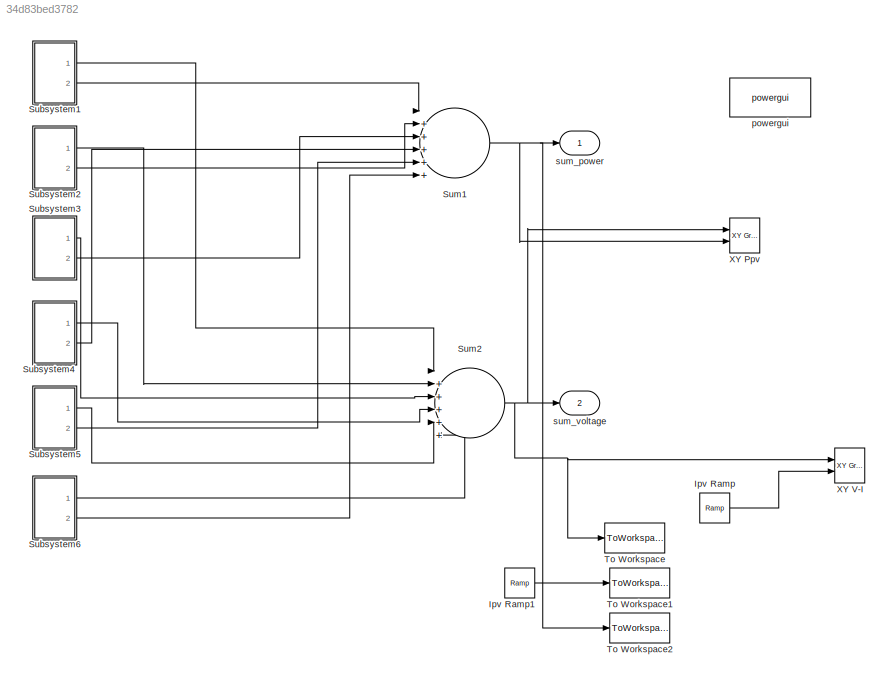
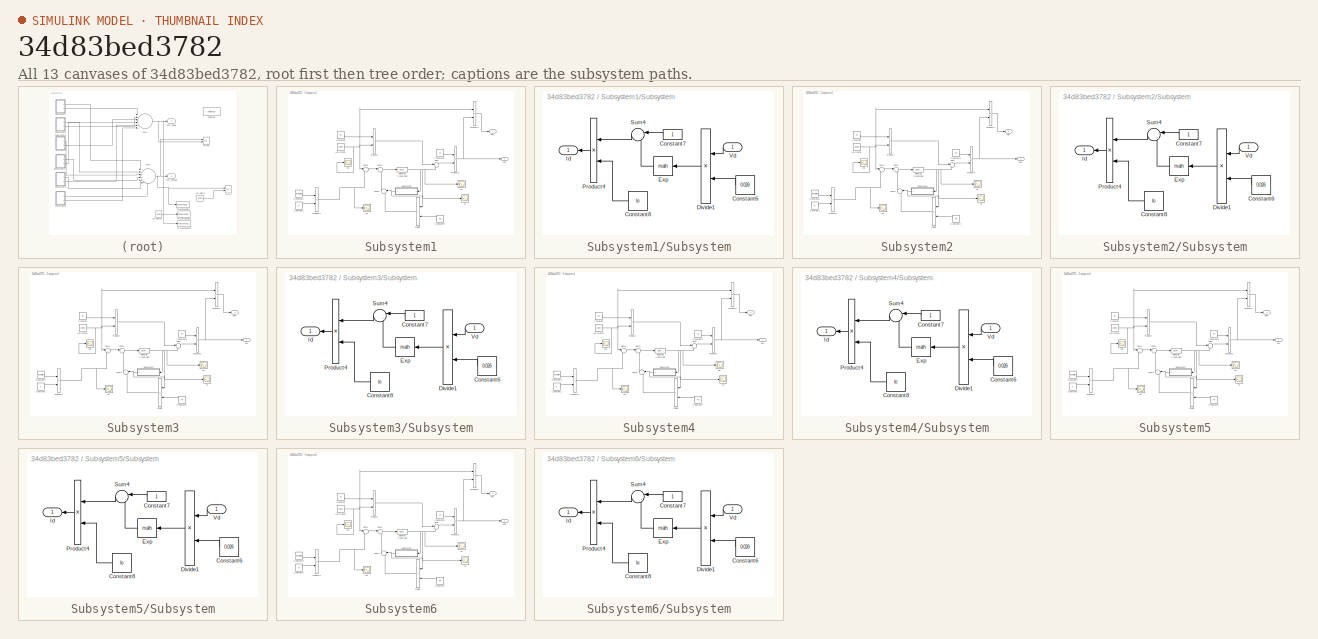
[diagram: thumbnail index - all 13 canvases of the model, root first then tree order]
MODEL slx_34d83bed3782
KIND model
CONFIG AbsTol = auto
CONFIG EnableMultiTasking = off
CONFIG FixedStep = auto
CONFIG MaxStep = auto
CONFIG MinStep = auto
CONFIG RelTol = 1e-3
CONFIG SampleTimeConstraint = Unconstrained
CONFIG Solver = VariableStepDiscrete
CONFIG SolverName = VariableStepDiscrete
CONFIG StartTime = 0.0
CONFIG StopTime = 1
BLOCK [Reference] Ipv Ramp  REF=simulink/Sources/Ramp
  Ports = [0, 1]
  SourceBlock = simulink/Sources/Ramp
  SourceProductBaseCode = SL
  SourceProductName = Simulink
  SourceType = Ramp
BLOCK [Reference] Ipv Ramp1  REF=simulink/Sources/Ramp
  Ports = [0, 1]
  SourceBlock = simulink/Sources/Ramp
  SourceProductBaseCode = SL
  SourceProductName = Simulink
  SourceType = Ramp
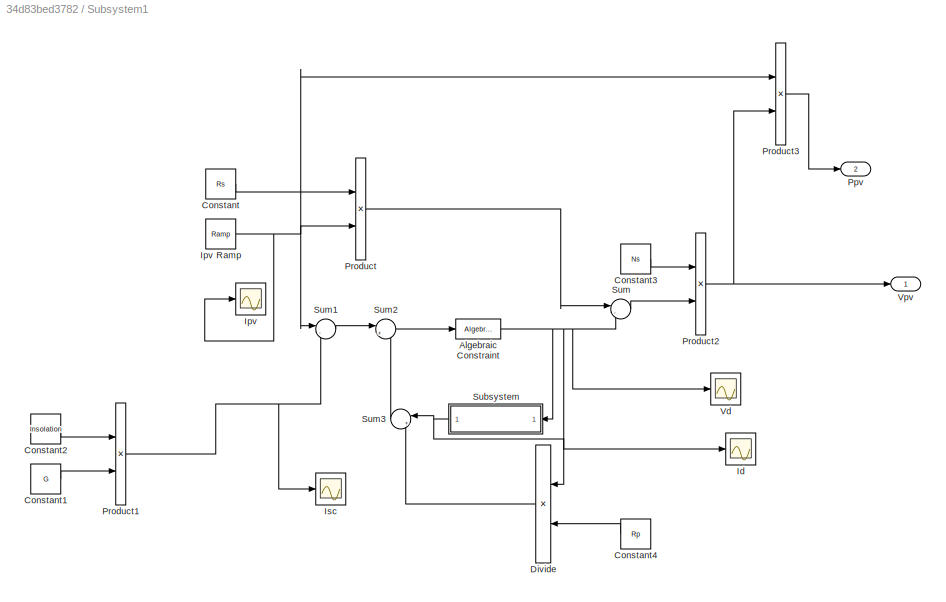
BLOCK [SubSystem] Subsystem1
  Ports = [0, 2]
  RequestExecContextInheritance = off
BLOCK [AlgebraicConstraint] Subsystem1/Algebraic Constraint
BLOCK [Constant] Subsystem1/Constant
  Value = Rs
BLOCK [Constant] Subsystem1/Constant1
  Value = G
BLOCK [Constant] Subsystem1/Constant2
  Value = Insolation
BLOCK [Constant] Subsystem1/Constant3
  Value = Ns
BLOCK [Constant] Subsystem1/Constant4
  Value = Rp
BLOCK [Product] Subsystem1/Divide
  InputSameDT = off
  Inputs = */
  OutDataTypeStr = Inherit: Inherit via internal rule
  Ports = [2, 1]
  RndMeth = Floor
  SaturateOnIntegerOverflow = off
BLOCK [Scope] Subsystem1/Id
  Floating = off
  NumInputPorts = 1
  Ports = [1]
  ScopeSpecificationString = Simulink.scopes.TimeScopeBlockCfg('CurrentConfiguration', extmgr.ConfigurationSet(extmgr.Configuration('Core','General UI',true),extmgr.Configuration('Core','Source UI',true),extmgr.Configuration('Sources','WiredSimulink',true,'DataLoggingVariableName','ScopeData2'),extmgr.Configuration('Visuals','Time Domain',true,'SerializedDisplays',{struct('MinYLimReal','-0.11149','MaxYLimReal','1.00337','YLab...<+1423ch>  <repeated x6 — deduplicated; at blocks: Id>
BLOCK [Scope] Subsystem1/Ipv 
  Floating = off
  NumInputPorts = 1
  Ports = [1]
  ScopeSpecificationString = Simulink.scopes.TimeScopeBlockCfg('CurrentConfiguration', extmgr.ConfigurationSet(extmgr.Configuration('Core','General UI',true),extmgr.Configuration('Core','Source UI',true),extmgr.Configuration('Sources','WiredSimulink',true,'DataLoggingVariableName','ScopeData3'),extmgr.Configuration('Visuals','Time Domain',true,'SerializedDisplays',{struct('MinYLimReal','-0.75','MaxYLimReal','6.75','YLabelReal...<+1404ch>  <repeated x6 — deduplicated; at blocks: Ipv>
BLOCK [Reference] Subsystem1/Ipv Ramp  REF=simulink/Sources/Ramp
  Ports = [0, 1]
  SourceBlock = simulink/Sources/Ramp
  SourceProductBaseCode = SL
  SourceProductName = Simulink
  SourceType = Ramp
BLOCK [Scope] Subsystem1/Isc
  Floating = off
  NumInputPorts = 1
  Ports = [1]
  ScopeSpecificationString = Simulink.scopes.TimeScopeBlockCfg('CurrentConfiguration', extmgr.ConfigurationSet(extmgr.Configuration('Core','General UI',true),extmgr.Configuration('Core','Source UI',true),extmgr.Configuration('Sources','WiredSimulink',true),extmgr.Configuration('Visuals','Time Domain',true,'SerializedDisplays',{struct('MinYLimReal','0.1','MaxYLimReal','2.1','YLabelReal','','MinYLimMag','0.1','MaxYLimMag','2.1'...<+1349ch>  <repeated x6 — deduplicated; at blocks: Isc>
BLOCK [Outport] Subsystem1/Ppv
  IconDisplay = Port number
  Port = 2
BLOCK [Product] Subsystem1/Product
  InputSameDT = off
  OutDataTypeStr = Inherit: Inherit via internal rule
  Ports = [2, 1]
  RndMeth = Floor
  SaturateOnIntegerOverflow = off
BLOCK [Product] Subsystem1/Product1
  InputSameDT = off
  OutDataTypeStr = Inherit: Inherit via internal rule
  Ports = [2, 1]
  RndMeth = Floor
  SaturateOnIntegerOverflow = off
BLOCK [Product] Subsystem1/Product2
  InputSameDT = off
  OutDataTypeStr = Inherit: Inherit via internal rule
  Ports = [2, 1]
  RndMeth = Floor
  SaturateOnIntegerOverflow = off
BLOCK [Product] Subsystem1/Product3
  InputSameDT = off
  OutDataTypeStr = Inherit: Inherit via internal rule
  Ports = [2, 1]
  RndMeth = Floor
  SaturateOnIntegerOverflow = off
BLOCK [SubSystem] Subsystem1/Subsystem
  Ports = [1, 1]
  RequestExecContextInheritance = off
BLOCK [Constant] Subsystem1/Subsystem/Constant6
  Value = 0.026
BLOCK [Constant] Subsystem1/Subsystem/Constant7
BLOCK [Constant] Subsystem1/Subsystem/Constant8
  Value = Io
BLOCK [Product] Subsystem1/Subsystem/Divide1
  InputSameDT = off
  Inputs = */
  OutDataTypeStr = Inherit: Inherit via internal rule
  Ports = [2, 1]
  RndMeth = Floor
  SaturateOnIntegerOverflow = off
BLOCK [Math] Subsystem1/Subsystem/Exp
  Ports = [1, 1]
BLOCK [Outport] Subsystem1/Subsystem/Id
  IconDisplay = Port number
BLOCK [Product] Subsystem1/Subsystem/Product4
  InputSameDT = off
  OutDataTypeStr = Inherit: Inherit via internal rule
  Ports = [2, 1]
  RndMeth = Floor
  SaturateOnIntegerOverflow = off
BLOCK [Sum] Subsystem1/Subsystem/Sum4
  IconShape = round
  InputSameDT = off
  Inputs = |-+
  OutDataTypeStr = Inherit: Inherit via internal rule
  Ports = [2, 1]
  SaturateOnIntegerOverflow = off
BLOCK [Inport] Subsystem1/Subsystem/Vd
  IconDisplay = Port number
BLOCK [Sum] Subsystem1/Sum
  IconShape = round
  InputSameDT = off
  Inputs = |-+
  OutDataTypeStr = Inherit: Inherit via internal rule
  Ports = [2, 1]
  SaturateOnIntegerOverflow = off
BLOCK [Sum] Subsystem1/Sum1
  IconShape = round
  InputSameDT = off
  Inputs = |-+
  OutDataTypeStr = Inherit: Inherit via internal rule
  Ports = [2, 1]
  SaturateOnIntegerOverflow = off
BLOCK [Sum] Subsystem1/Sum2
  IconShape = round
  InputSameDT = off
  Inputs = |+-
  OutDataTypeStr = Inherit: Inherit via internal rule
  Ports = [2, 1]
  SaturateOnIntegerOverflow = off
BLOCK [Sum] Subsystem1/Sum3
  IconShape = round
  InputSameDT = off
  Inputs = |++
  OutDataTypeStr = Inherit: Inherit via internal rule
  Ports = [2, 1]
  SaturateOnIntegerOverflow = off
BLOCK [Scope] Subsystem1/Vd
  Floating = off
  NumInputPorts = 1
  Ports = [1]
  ScopeSpecificationString = Simulink.scopes.TimeScopeBlockCfg('CurrentConfiguration', extmgr.ConfigurationSet(extmgr.Configuration('Core','General UI',true),extmgr.Configuration('Core','Source UI',true),extmgr.Configuration('Sources','WiredSimulink',true,'DataLoggingVariableName','ScopeData1'),extmgr.Configuration('Visuals','Time Domain',true,'SerializedDisplays',{struct('MinYLimReal','-15.18772','MaxYLimReal','2.32164','YLa...<+1438ch>  <repeated x6 — deduplicated; at blocks: Vd>
BLOCK [Outport] Subsystem1/Vpv
  IconDisplay = Port number
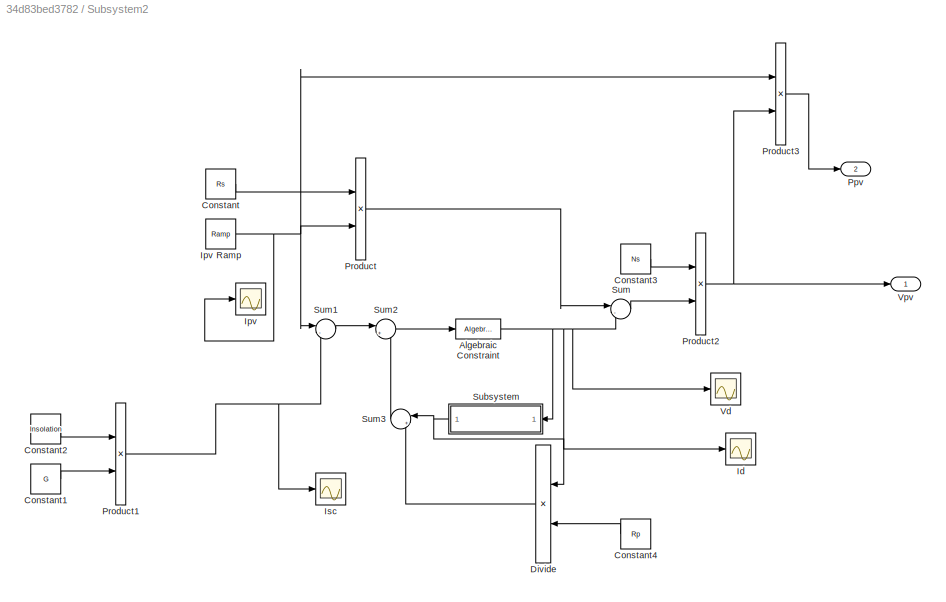
BLOCK [SubSystem] Subsystem2
  Ports = [0, 2]
  RequestExecContextInheritance = off
BLOCK [AlgebraicConstraint] Subsystem2/Algebraic Constraint
BLOCK [Constant] Subsystem2/Constant
  Value = Rs
BLOCK [Constant] Subsystem2/Constant1
  Value = G
BLOCK [Constant] Subsystem2/Constant2
  Value = Insolation
BLOCK [Constant] Subsystem2/Constant3
  Value = Ns
BLOCK [Constant] Subsystem2/Constant4
  Value = Rp
BLOCK [Product] Subsystem2/Divide
  InputSameDT = off
  Inputs = */
  OutDataTypeStr = Inherit: Inherit via internal rule
  Ports = [2, 1]
  RndMeth = Floor
  SaturateOnIntegerOverflow = off
BLOCK [Scope] Subsystem2/Id
  Floating = off
  NumInputPorts = 1
  Ports = [1]
BLOCK [Scope] Subsystem2/Ipv 
  Floating = off
  NumInputPorts = 1
  Ports = [1]
BLOCK [Reference] Subsystem2/Ipv Ramp  REF=simulink/Sources/Ramp
  Ports = [0, 1]
  SourceBlock = simulink/Sources/Ramp
  SourceProductBaseCode = SL
  SourceProductName = Simulink
  SourceType = Ramp
BLOCK [Scope] Subsystem2/Isc
  Floating = off
  NumInputPorts = 1
  Ports = [1]
BLOCK [Outport] Subsystem2/Ppv
  IconDisplay = Port number
  Port = 2
BLOCK [Product] Subsystem2/Product
  InputSameDT = off
  OutDataTypeStr = Inherit: Inherit via internal rule
  Ports = [2, 1]
  RndMeth = Floor
  SaturateOnIntegerOverflow = off
BLOCK [Product] Subsystem2/Product1
  InputSameDT = off
  OutDataTypeStr = Inherit: Inherit via internal rule
  Ports = [2, 1]
  RndMeth = Floor
  SaturateOnIntegerOverflow = off
BLOCK [Product] Subsystem2/Product2
  InputSameDT = off
  OutDataTypeStr = Inherit: Inherit via internal rule
  Ports = [2, 1]
  RndMeth = Floor
  SaturateOnIntegerOverflow = off
BLOCK [Product] Subsystem2/Product3
  InputSameDT = off
  OutDataTypeStr = Inherit: Inherit via internal rule
  Ports = [2, 1]
  RndMeth = Floor
  SaturateOnIntegerOverflow = off
BLOCK [SubSystem] Subsystem2/Subsystem
  Ports = [1, 1]
  RequestExecContextInheritance = off
BLOCK [Constant] Subsystem2/Subsystem/Constant6
  Value = 0.026
BLOCK [Constant] Subsystem2/Subsystem/Constant7
BLOCK [Constant] Subsystem2/Subsystem/Constant8
  Value = Io
BLOCK [Product] Subsystem2/Subsystem/Divide1
  InputSameDT = off
  Inputs = */
  OutDataTypeStr = Inherit: Inherit via internal rule
  Ports = [2, 1]
  RndMeth = Floor
  SaturateOnIntegerOverflow = off
BLOCK [Math] Subsystem2/Subsystem/Exp
  Ports = [1, 1]
BLOCK [Outport] Subsystem2/Subsystem/Id
  IconDisplay = Port number
BLOCK [Product] Subsystem2/Subsystem/Product4
  InputSameDT = off
  OutDataTypeStr = Inherit: Inherit via internal rule
  Ports = [2, 1]
  RndMeth = Floor
  SaturateOnIntegerOverflow = off
BLOCK [Sum] Subsystem2/Subsystem/Sum4
  IconShape = round
  InputSameDT = off
  Inputs = |-+
  OutDataTypeStr = Inherit: Inherit via internal rule
  Ports = [2, 1]
  SaturateOnIntegerOverflow = off
BLOCK [Inport] Subsystem2/Subsystem/Vd
  IconDisplay = Port number
BLOCK [Sum] Subsystem2/Sum
  IconShape = round
  InputSameDT = off
  Inputs = |-+
  OutDataTypeStr = Inherit: Inherit via internal rule
  Ports = [2, 1]
  SaturateOnIntegerOverflow = off
BLOCK [Sum] Subsystem2/Sum1
  IconShape = round
  InputSameDT = off
  Inputs = |-+
  OutDataTypeStr = Inherit: Inherit via internal rule
  Ports = [2, 1]
  SaturateOnIntegerOverflow = off
BLOCK [Sum] Subsystem2/Sum2
  IconShape = round
  InputSameDT = off
  Inputs = |+-
  OutDataTypeStr = Inherit: Inherit via internal rule
  Ports = [2, 1]
  SaturateOnIntegerOverflow = off
BLOCK [Sum] Subsystem2/Sum3
  IconShape = round
  InputSameDT = off
  Inputs = |++
  OutDataTypeStr = Inherit: Inherit via internal rule
  Ports = [2, 1]
  SaturateOnIntegerOverflow = off
BLOCK [Scope] Subsystem2/Vd
  Floating = off
  NumInputPorts = 1
  Ports = [1]
BLOCK [Outport] Subsystem2/Vpv
  IconDisplay = Port number
BLOCK [SubSystem] Subsystem3
  Ports = [0, 2]
  RequestExecContextInheritance = off
BLOCK [AlgebraicConstraint] Subsystem3/Algebraic Constraint
BLOCK [Constant] Subsystem3/Constant
  Value = Rs
BLOCK [Constant] Subsystem3/Constant1
  Value = G
BLOCK [Constant] Subsystem3/Constant2
  Value = Insolation
BLOCK [Constant] Subsystem3/Constant3
  Value = Ns
BLOCK [Constant] Subsystem3/Constant4
  Value = Rp
BLOCK [Product] Subsystem3/Divide
  InputSameDT = off
  Inputs = */
  OutDataTypeStr = Inherit: Inherit via internal rule
  Ports = [2, 1]
  RndMeth = Floor
  SaturateOnIntegerOverflow = off
BLOCK [Scope] Subsystem3/Id
  Floating = off
  NumInputPorts = 1
  Ports = [1]
BLOCK [Scope] Subsystem3/Ipv 
  Floating = off
  NumInputPorts = 1
  Ports = [1]
BLOCK [Reference] Subsystem3/Ipv Ramp  REF=simulink/Sources/Ramp
  Ports = [0, 1]
  SourceBlock = simulink/Sources/Ramp
  SourceProductBaseCode = SL
  SourceProductName = Simulink
  SourceType = Ramp
BLOCK [Scope] Subsystem3/Isc
  Floating = off
  NumInputPorts = 1
  Ports = [1]
BLOCK [Outport] Subsystem3/Ppv
  IconDisplay = Port number
  Port = 2
BLOCK [Product] Subsystem3/Product
  InputSameDT = off
  OutDataTypeStr = Inherit: Inherit via internal rule
  Ports = [2, 1]
  RndMeth = Floor
  SaturateOnIntegerOverflow = off
BLOCK [Product] Subsystem3/Product1
  InputSameDT = off
  OutDataTypeStr = Inherit: Inherit via internal rule
  Ports = [2, 1]
  RndMeth = Floor
  SaturateOnIntegerOverflow = off
BLOCK [Product] Subsystem3/Product2
  InputSameDT = off
  OutDataTypeStr = Inherit: Inherit via internal rule
  Ports = [2, 1]
  RndMeth = Floor
  SaturateOnIntegerOverflow = off
BLOCK [Product] Subsystem3/Product3
  InputSameDT = off
  OutDataTypeStr = Inherit: Inherit via internal rule
  Ports = [2, 1]
  RndMeth = Floor
  SaturateOnIntegerOverflow = off
BLOCK [SubSystem] Subsystem3/Subsystem
  Ports = [1, 1]
  RequestExecContextInheritance = off
BLOCK [Constant] Subsystem3/Subsystem/Constant6
  Value = 0.026
BLOCK [Constant] Subsystem3/Subsystem/Constant7
BLOCK [Constant] Subsystem3/Subsystem/Constant8
  Value = Io
BLOCK [Product] Subsystem3/Subsystem/Divide1
  InputSameDT = off
  Inputs = */
  OutDataTypeStr = Inherit: Inherit via internal rule
  Ports = [2, 1]
  RndMeth = Floor
  SaturateOnIntegerOverflow = off
BLOCK [Math] Subsystem3/Subsystem/Exp
  Ports = [1, 1]
BLOCK [Outport] Subsystem3/Subsystem/Id
  IconDisplay = Port number
BLOCK [Product] Subsystem3/Subsystem/Product4
  InputSameDT = off
  OutDataTypeStr = Inherit: Inherit via internal rule
  Ports = [2, 1]
  RndMeth = Floor
  SaturateOnIntegerOverflow = off
BLOCK [Sum] Subsystem3/Subsystem/Sum4
  IconShape = round
  InputSameDT = off
  Inputs = |-+
  OutDataTypeStr = Inherit: Inherit via internal rule
  Ports = [2, 1]
  SaturateOnIntegerOverflow = off
BLOCK [Inport] Subsystem3/Subsystem/Vd
  IconDisplay = Port number
BLOCK [Sum] Subsystem3/Sum
  IconShape = round
  InputSameDT = off
  Inputs = |-+
  OutDataTypeStr = Inherit: Inherit via internal rule
  Ports = [2, 1]
  SaturateOnIntegerOverflow = off
BLOCK [Sum] Subsystem3/Sum1
  IconShape = round
  InputSameDT = off
  Inputs = |-+
  OutDataTypeStr = Inherit: Inherit via internal rule
  Ports = [2, 1]
  SaturateOnIntegerOverflow = off
BLOCK [Sum] Subsystem3/Sum2
  IconShape = round
  InputSameDT = off
  Inputs = |+-
  OutDataTypeStr = Inherit: Inherit via internal rule
  Ports = [2, 1]
  SaturateOnIntegerOverflow = off
BLOCK [Sum] Subsystem3/Sum3
  IconShape = round
  InputSameDT = off
  Inputs = |++
  OutDataTypeStr = Inherit: Inherit via internal rule
  Ports = [2, 1]
  SaturateOnIntegerOverflow = off
BLOCK [Scope] Subsystem3/Vd
  Floating = off
  NumInputPorts = 1
  Ports = [1]
BLOCK [Outport] Subsystem3/Vpv
  IconDisplay = Port number
BLOCK [SubSystem] Subsystem4
  Ports = [0, 2]
  RequestExecContextInheritance = off
BLOCK [AlgebraicConstraint] Subsystem4/Algebraic Constraint
BLOCK [Constant] Subsystem4/Constant
  Value = Rs
BLOCK [Constant] Subsystem4/Constant1
  Value = G
BLOCK [Constant] Subsystem4/Constant2
  Value = Insolation
BLOCK [Constant] Subsystem4/Constant3
  Value = Ns
BLOCK [Constant] Subsystem4/Constant4
  Value = Rp
BLOCK [Product] Subsystem4/Divide
  InputSameDT = off
  Inputs = */
  OutDataTypeStr = Inherit: Inherit via internal rule
  Ports = [2, 1]
  RndMeth = Floor
  SaturateOnIntegerOverflow = off
BLOCK [Scope] Subsystem4/Id
  Floating = off
  NumInputPorts = 1
  Ports = [1]
BLOCK [Scope] Subsystem4/Ipv 
  Floating = off
  NumInputPorts = 1
  Ports = [1]
BLOCK [Reference] Subsystem4/Ipv Ramp  REF=simulink/Sources/Ramp
  Ports = [0, 1]
  SourceBlock = simulink/Sources/Ramp
  SourceProductBaseCode = SL
  SourceProductName = Simulink
  SourceType = Ramp
BLOCK [Scope] Subsystem4/Isc
  Floating = off
  NumInputPorts = 1
  Ports = [1]
BLOCK [Outport] Subsystem4/Ppv
  IconDisplay = Port number
  Port = 2
BLOCK [Product] Subsystem4/Product
  InputSameDT = off
  OutDataTypeStr = Inherit: Inherit via internal rule
  Ports = [2, 1]
  RndMeth = Floor
  SaturateOnIntegerOverflow = off
BLOCK [Product] Subsystem4/Product1
  InputSameDT = off
  OutDataTypeStr = Inherit: Inherit via internal rule
  Ports = [2, 1]
  RndMeth = Floor
  SaturateOnIntegerOverflow = off
BLOCK [Product] Subsystem4/Product2
  InputSameDT = off
  OutDataTypeStr = Inherit: Inherit via internal rule
  Ports = [2, 1]
  RndMeth = Floor
  SaturateOnIntegerOverflow = off
BLOCK [Product] Subsystem4/Product3
  InputSameDT = off
  OutDataTypeStr = Inherit: Inherit via internal rule
  Ports = [2, 1]
  RndMeth = Floor
  SaturateOnIntegerOverflow = off
BLOCK [SubSystem] Subsystem4/Subsystem
  Ports = [1, 1]
  RequestExecContextInheritance = off
BLOCK [Constant] Subsystem4/Subsystem/Constant6
  Value = 0.026
BLOCK [Constant] Subsystem4/Subsystem/Constant7
BLOCK [Constant] Subsystem4/Subsystem/Constant8
  Value = Io
BLOCK [Product] Subsystem4/Subsystem/Divide1
  InputSameDT = off
  Inputs = */
  OutDataTypeStr = Inherit: Inherit via internal rule
  Ports = [2, 1]
  RndMeth = Floor
  SaturateOnIntegerOverflow = off
BLOCK [Math] Subsystem4/Subsystem/Exp
  Ports = [1, 1]
BLOCK [Outport] Subsystem4/Subsystem/Id
  IconDisplay = Port number
BLOCK [Product] Subsystem4/Subsystem/Product4
  InputSameDT = off
  OutDataTypeStr = Inherit: Inherit via internal rule
  Ports = [2, 1]
  RndMeth = Floor
  SaturateOnIntegerOverflow = off
BLOCK [Sum] Subsystem4/Subsystem/Sum4
  IconShape = round
  InputSameDT = off
  Inputs = |-+
  OutDataTypeStr = Inherit: Inherit via internal rule
  Ports = [2, 1]
  SaturateOnIntegerOverflow = off
BLOCK [Inport] Subsystem4/Subsystem/Vd
  IconDisplay = Port number
BLOCK [Sum] Subsystem4/Sum
  IconShape = round
  InputSameDT = off
  Inputs = |-+
  OutDataTypeStr = Inherit: Inherit via internal rule
  Ports = [2, 1]
  SaturateOnIntegerOverflow = off
BLOCK [Sum] Subsystem4/Sum1
  IconShape = round
  InputSameDT = off
  Inputs = |-+
  OutDataTypeStr = Inherit: Inherit via internal rule
  Ports = [2, 1]
  SaturateOnIntegerOverflow = off
BLOCK [Sum] Subsystem4/Sum2
  IconShape = round
  InputSameDT = off
  Inputs = |+-
  OutDataTypeStr = Inherit: Inherit via internal rule
  Ports = [2, 1]
  SaturateOnIntegerOverflow = off
BLOCK [Sum] Subsystem4/Sum3
  IconShape = round
  InputSameDT = off
  Inputs = |++
  OutDataTypeStr = Inherit: Inherit via internal rule
  Ports = [2, 1]
  SaturateOnIntegerOverflow = off
BLOCK [Scope] Subsystem4/Vd
  Floating = off
  NumInputPorts = 1
  Ports = [1]
BLOCK [Outport] Subsystem4/Vpv
  IconDisplay = Port number
BLOCK [SubSystem] Subsystem5
  Ports = [0, 2]
  RequestExecContextInheritance = off
BLOCK [AlgebraicConstraint] Subsystem5/Algebraic Constraint
BLOCK [Constant] Subsystem5/Constant
  Value = Rs
BLOCK [Constant] Subsystem5/Constant1
  Value = G
BLOCK [Constant] Subsystem5/Constant2
  Value = Insolation
BLOCK [Constant] Subsystem5/Constant3
  Value = Ns
BLOCK [Constant] Subsystem5/Constant4
  Value = Rp
BLOCK [Product] Subsystem5/Divide
  InputSameDT = off
  Inputs = */
  OutDataTypeStr = Inherit: Inherit via internal rule
  Ports = [2, 1]
  RndMeth = Floor
  SaturateOnIntegerOverflow = off
BLOCK [Scope] Subsystem5/Id
  Floating = off
  NumInputPorts = 1
  Ports = [1]
BLOCK [Scope] Subsystem5/Ipv 
  Floating = off
  NumInputPorts = 1
  Ports = [1]
BLOCK [Reference] Subsystem5/Ipv Ramp  REF=simulink/Sources/Ramp
  Ports = [0, 1]
  SourceBlock = simulink/Sources/Ramp
  SourceProductBaseCode = SL
  SourceProductName = Simulink
  SourceType = Ramp
BLOCK [Scope] Subsystem5/Isc
  Floating = off
  NumInputPorts = 1
  Ports = [1]
BLOCK [Outport] Subsystem5/Ppv
  IconDisplay = Port number
  Port = 2
BLOCK [Product] Subsystem5/Product
  InputSameDT = off
  OutDataTypeStr = Inherit: Inherit via internal rule
  Ports = [2, 1]
  RndMeth = Floor
  SaturateOnIntegerOverflow = off
BLOCK [Product] Subsystem5/Product1
  InputSameDT = off
  OutDataTypeStr = Inherit: Inherit via internal rule
  Ports = [2, 1]
  RndMeth = Floor
  SaturateOnIntegerOverflow = off
BLOCK [Product] Subsystem5/Product2
  InputSameDT = off
  OutDataTypeStr = Inherit: Inherit via internal rule
  Ports = [2, 1]
  RndMeth = Floor
  SaturateOnIntegerOverflow = off
BLOCK [Product] Subsystem5/Product3
  InputSameDT = off
  OutDataTypeStr = Inherit: Inherit via internal rule
  Ports = [2, 1]
  RndMeth = Floor
  SaturateOnIntegerOverflow = off
BLOCK [SubSystem] Subsystem5/Subsystem
  Ports = [1, 1]
  RequestExecContextInheritance = off
BLOCK [Constant] Subsystem5/Subsystem/Constant6
  Value = 0.026
BLOCK [Constant] Subsystem5/Subsystem/Constant7
BLOCK [Constant] Subsystem5/Subsystem/Constant8
  Value = Io
BLOCK [Product] Subsystem5/Subsystem/Divide1
  InputSameDT = off
  Inputs = */
  OutDataTypeStr = Inherit: Inherit via internal rule
  Ports = [2, 1]
  RndMeth = Floor
  SaturateOnIntegerOverflow = off
BLOCK [Math] Subsystem5/Subsystem/Exp
  Ports = [1, 1]
BLOCK [Outport] Subsystem5/Subsystem/Id
  IconDisplay = Port number
BLOCK [Product] Subsystem5/Subsystem/Product4
  InputSameDT = off
  OutDataTypeStr = Inherit: Inherit via internal rule
  Ports = [2, 1]
  RndMeth = Floor
  SaturateOnIntegerOverflow = off
BLOCK [Sum] Subsystem5/Subsystem/Sum4
  IconShape = round
  InputSameDT = off
  Inputs = |-+
  OutDataTypeStr = Inherit: Inherit via internal rule
  Ports = [2, 1]
  SaturateOnIntegerOverflow = off
BLOCK [Inport] Subsystem5/Subsystem/Vd
  IconDisplay = Port number
BLOCK [Sum] Subsystem5/Sum
  IconShape = round
  InputSameDT = off
  Inputs = |-+
  OutDataTypeStr = Inherit: Inherit via internal rule
  Ports = [2, 1]
  SaturateOnIntegerOverflow = off
BLOCK [Sum] Subsystem5/Sum1
  IconShape = round
  InputSameDT = off
  Inputs = |-+
  OutDataTypeStr = Inherit: Inherit via internal rule
  Ports = [2, 1]
  SaturateOnIntegerOverflow = off
BLOCK [Sum] Subsystem5/Sum2
  IconShape = round
  InputSameDT = off
  Inputs = |+-
  OutDataTypeStr = Inherit: Inherit via internal rule
  Ports = [2, 1]
  SaturateOnIntegerOverflow = off
BLOCK [Sum] Subsystem5/Sum3
  IconShape = round
  InputSameDT = off
  Inputs = |++
  OutDataTypeStr = Inherit: Inherit via internal rule
  Ports = [2, 1]
  SaturateOnIntegerOverflow = off
BLOCK [Scope] Subsystem5/Vd
  Floating = off
  NumInputPorts = 1
  Ports = [1]
BLOCK [Outport] Subsystem5/Vpv
  IconDisplay = Port number
BLOCK [SubSystem] Subsystem6
  Ports = [0, 2]
  RequestExecContextInheritance = off
BLOCK [AlgebraicConstraint] Subsystem6/Algebraic Constraint
BLOCK [Constant] Subsystem6/Constant
  Value = Rs
BLOCK [Constant] Subsystem6/Constant1
  Value = G
BLOCK [Constant] Subsystem6/Constant2
  Value = Insolation
BLOCK [Constant] Subsystem6/Constant3
  Value = Ns
BLOCK [Constant] Subsystem6/Constant4
  Value = Rp
BLOCK [Product] Subsystem6/Divide
  InputSameDT = off
  Inputs = */
  OutDataTypeStr = Inherit: Inherit via internal rule
  Ports = [2, 1]
  RndMeth = Floor
  SaturateOnIntegerOverflow = off
BLOCK [Scope] Subsystem6/Id
  Floating = off
  NumInputPorts = 1
  Ports = [1]
BLOCK [Scope] Subsystem6/Ipv 
  Floating = off
  NumInputPorts = 1
  Ports = [1]
BLOCK [Reference] Subsystem6/Ipv Ramp  REF=simulink/Sources/Ramp
  Ports = [0, 1]
  SourceBlock = simulink/Sources/Ramp
  SourceProductBaseCode = SL
  SourceProductName = Simulink
  SourceType = Ramp
BLOCK [Scope] Subsystem6/Isc
  Floating = off
  NumInputPorts = 1
  Ports = [1]
BLOCK [Outport] Subsystem6/Ppv
  IconDisplay = Port number
  Port = 2
BLOCK [Product] Subsystem6/Product
  InputSameDT = off
  OutDataTypeStr = Inherit: Inherit via internal rule
  Ports = [2, 1]
  RndMeth = Floor
  SaturateOnIntegerOverflow = off
BLOCK [Product] Subsystem6/Product1
  InputSameDT = off
  OutDataTypeStr = Inherit: Inherit via internal rule
  Ports = [2, 1]
  RndMeth = Floor
  SaturateOnIntegerOverflow = off
BLOCK [Product] Subsystem6/Product2
  InputSameDT = off
  OutDataTypeStr = Inherit: Inherit via internal rule
  Ports = [2, 1]
  RndMeth = Floor
  SaturateOnIntegerOverflow = off
BLOCK [Product] Subsystem6/Product3
  InputSameDT = off
  OutDataTypeStr = Inherit: Inherit via internal rule
  Ports = [2, 1]
  RndMeth = Floor
  SaturateOnIntegerOverflow = off
BLOCK [SubSystem] Subsystem6/Subsystem
  Ports = [1, 1]
  RequestExecContextInheritance = off
BLOCK [Constant] Subsystem6/Subsystem/Constant6
  Value = 0.026
BLOCK [Constant] Subsystem6/Subsystem/Constant7
BLOCK [Constant] Subsystem6/Subsystem/Constant8
  Value = Io
BLOCK [Product] Subsystem6/Subsystem/Divide1
  InputSameDT = off
  Inputs = */
  OutDataTypeStr = Inherit: Inherit via internal rule
  Ports = [2, 1]
  RndMeth = Floor
  SaturateOnIntegerOverflow = off
BLOCK [Math] Subsystem6/Subsystem/Exp
  Ports = [1, 1]
BLOCK [Outport] Subsystem6/Subsystem/Id
  IconDisplay = Port number
BLOCK [Product] Subsystem6/Subsystem/Product4
  InputSameDT = off
  OutDataTypeStr = Inherit: Inherit via internal rule
  Ports = [2, 1]
  RndMeth = Floor
  SaturateOnIntegerOverflow = off
BLOCK [Sum] Subsystem6/Subsystem/Sum4
  IconShape = round
  InputSameDT = off
  Inputs = |-+
  OutDataTypeStr = Inherit: Inherit via internal rule
  Ports = [2, 1]
  SaturateOnIntegerOverflow = off
BLOCK [Inport] Subsystem6/Subsystem/Vd
  IconDisplay = Port number
BLOCK [Sum] Subsystem6/Sum
  IconShape = round
  InputSameDT = off
  Inputs = |-+
  OutDataTypeStr = Inherit: Inherit via internal rule
  Ports = [2, 1]
  SaturateOnIntegerOverflow = off
BLOCK [Sum] Subsystem6/Sum1
  IconShape = round
  InputSameDT = off
  Inputs = |-+
  OutDataTypeStr = Inherit: Inherit via internal rule
  Ports = [2, 1]
  SaturateOnIntegerOverflow = off
BLOCK [Sum] Subsystem6/Sum2
  IconShape = round
  InputSameDT = off
  Inputs = |+-
  OutDataTypeStr = Inherit: Inherit via internal rule
  Ports = [2, 1]
  SaturateOnIntegerOverflow = off
BLOCK [Sum] Subsystem6/Sum3
  IconShape = round
  InputSameDT = off
  Inputs = |++
  OutDataTypeStr = Inherit: Inherit via internal rule
  Ports = [2, 1]
  SaturateOnIntegerOverflow = off
BLOCK [Scope] Subsystem6/Vd
  Floating = off
  NumInputPorts = 1
  Ports = [1]
BLOCK [Outport] Subsystem6/Vpv
  IconDisplay = Port number
BLOCK [Sum] Sum1
  IconShape = round
  InputSameDT = off
  Inputs = |++++++
  OutDataTypeStr = Inherit: Inherit via internal rule
  Ports = [6, 1]
  SaturateOnIntegerOverflow = off
BLOCK [Sum] Sum2
  IconShape = round
  InputSameDT = off
  Inputs = |++++++
  OutDataTypeStr = Inherit: Inherit via internal rule
  Ports = [6, 1]
  SaturateOnIntegerOverflow = off
BLOCK [ToWorkspace] To Workspace
  FixptAsFi = on
  MaxDataPoints = inf
  Ports = [1]
  SampleTime = -1
  Save2DSignal = 3-D array (concatenate along third dimension)
  SaveFormat = Timeseries
  VariableName = Vpv_200
BLOCK [ToWorkspace] To Workspace1
  FixptAsFi = on
  MaxDataPoints = inf
  Ports = [1]
  SampleTime = -1
  Save2DSignal = 3-D array (concatenate along third dimension)
  SaveFormat = Timeseries
  VariableName = Ipv_200
BLOCK [ToWorkspace] To Workspace2
  FixptAsFi = on
  MaxDataPoints = inf
  Ports = [1]
  SampleTime = -1
  Save2DSignal = 3-D array (concatenate along third dimension)
  SaveFormat = Timeseries
  VariableName = Ppv_200
BLOCK [Reference] XY Ppv  REF=simulink/Sinks/XY Graph
  Ports = [2]
  SourceBlock = simulink/Sinks/XY Graph
  SourceProductBaseCode = SL
  SourceProductName = Simulink
  SourceType = XY scope.
BLOCK [Reference] XY V-I  REF=simulink/Sinks/XY Graph
  Ports = [2]
  SourceBlock = simulink/Sinks/XY Graph
  SourceProductBaseCode = SL
  SourceProductName = Simulink
  SourceType = XY scope.
BLOCK [Reference] powergui  REF=powerlib/powergui
  Ports = []
  Priority = 1
  SourceBlock = powerlib/powergui
  SourceProductBaseCode = PS
  SourceProductName = Simscape Power Systems
  SourceType = PSB option menu block
BLOCK [Outport] sum_power 
  IconDisplay = Port number
BLOCK [Outport] sum_voltage 
  IconDisplay = Port number
  Port = 2
LINE Ipv Ramp1:1 -> To Workspace1:1
LINE Ipv Ramp:1 -> XY V-I:2
NET Subsystem1/Algebraic Constraint:1 -> Subsystem1/Divide:1, Subsystem1/Subsystem:1, Subsystem1/Sum:2, Subsystem1/Vd:1
LINE Subsystem1/Constant1:1 -> Subsystem1/Product1:2
LINE Subsystem1/Constant2:1 -> Subsystem1/Product1:1
LINE Subsystem1/Constant3:1 -> Subsystem1/Product2:1
LINE Subsystem1/Constant4:1 -> Subsystem1/Divide:2
LINE Subsystem1/Constant:1 -> Subsystem1/Product:1
LINE Subsystem1/Divide:1 -> Subsystem1/Sum3:2
NET Subsystem1/Ipv Ramp:1 -> Subsystem1/Ipv :1, Subsystem1/Product3:1, Subsystem1/Product:2, Subsystem1/Sum1:1
NET Subsystem1/Product1:1 -> Subsystem1/Isc:1, Subsystem1/Sum1:2
NET Subsystem1/Product2:1 -> Subsystem1/Product3:2, Subsystem1/Vpv:1
LINE Subsystem1/Product3:1 -> Subsystem1/Ppv:1
LINE Subsystem1/Product:1 -> Subsystem1/Sum:1
LINE Subsystem1/Subsystem/Constant6:1 -> Subsystem1/Subsystem/Divide1:2
LINE Subsystem1/Subsystem/Constant7:1 -> Subsystem1/Subsystem/Sum4:1
LINE Subsystem1/Subsystem/Constant8:1 -> Subsystem1/Subsystem/Product4:2
LINE Subsystem1/Subsystem/Divide1:1 -> Subsystem1/Subsystem/Exp:1
LINE Subsystem1/Subsystem/Exp:1 -> Subsystem1/Subsystem/Sum4:2
LINE Subsystem1/Subsystem/Product4:1 -> Subsystem1/Subsystem/Id:1
LINE Subsystem1/Subsystem/Sum4:1 -> Subsystem1/Subsystem/Product4:1
LINE Subsystem1/Subsystem/Vd:1 -> Subsystem1/Subsystem/Divide1:1
NET Subsystem1/Subsystem:1 -> Subsystem1/Id:1, Subsystem1/Sum3:1
LINE Subsystem1/Sum1:1 -> Subsystem1/Sum2:1
LINE Subsystem1/Sum2:1 -> Subsystem1/Algebraic Constraint:1
LINE Subsystem1/Sum3:1 -> Subsystem1/Sum2:2
LINE Subsystem1/Sum:1 -> Subsystem1/Product2:2
LINE Subsystem1:1 -> Sum2:1
LINE Subsystem1:2 -> Sum1:1
NET Subsystem2/Algebraic Constraint:1 -> Subsystem2/Divide:1, Subsystem2/Subsystem:1, Subsystem2/Sum:2, Subsystem2/Vd:1
LINE Subsystem2/Constant1:1 -> Subsystem2/Product1:2
LINE Subsystem2/Constant2:1 -> Subsystem2/Product1:1
LINE Subsystem2/Constant3:1 -> Subsystem2/Product2:1
LINE Subsystem2/Constant4:1 -> Subsystem2/Divide:2
LINE Subsystem2/Constant:1 -> Subsystem2/Product:1
LINE Subsystem2/Divide:1 -> Subsystem2/Sum3:2
NET Subsystem2/Ipv Ramp:1 -> Subsystem2/Ipv :1, Subsystem2/Product3:1, Subsystem2/Product:2, Subsystem2/Sum1:1
NET Subsystem2/Product1:1 -> Subsystem2/Isc:1, Subsystem2/Sum1:2
NET Subsystem2/Product2:1 -> Subsystem2/Product3:2, Subsystem2/Vpv:1
LINE Subsystem2/Product3:1 -> Subsystem2/Ppv:1
LINE Subsystem2/Product:1 -> Subsystem2/Sum:1
LINE Subsystem2/Subsystem/Constant6:1 -> Subsystem2/Subsystem/Divide1:2
LINE Subsystem2/Subsystem/Constant7:1 -> Subsystem2/Subsystem/Sum4:1
LINE Subsystem2/Subsystem/Constant8:1 -> Subsystem2/Subsystem/Product4:2
LINE Subsystem2/Subsystem/Divide1:1 -> Subsystem2/Subsystem/Exp:1
LINE Subsystem2/Subsystem/Exp:1 -> Subsystem2/Subsystem/Sum4:2
LINE Subsystem2/Subsystem/Product4:1 -> Subsystem2/Subsystem/Id:1
LINE Subsystem2/Subsystem/Sum4:1 -> Subsystem2/Subsystem/Product4:1
LINE Subsystem2/Subsystem/Vd:1 -> Subsystem2/Subsystem/Divide1:1
NET Subsystem2/Subsystem:1 -> Subsystem2/Id:1, Subsystem2/Sum3:1
LINE Subsystem2/Sum1:1 -> Subsystem2/Sum2:1
LINE Subsystem2/Sum2:1 -> Subsystem2/Algebraic Constraint:1
LINE Subsystem2/Sum3:1 -> Subsystem2/Sum2:2
LINE Subsystem2/Sum:1 -> Subsystem2/Product2:2
LINE Subsystem2:1 -> Sum2:2
LINE Subsystem2:2 -> Sum1:2
NET Subsystem3/Algebraic Constraint:1 -> Subsystem3/Divide:1, Subsystem3/Subsystem:1, Subsystem3/Sum:2, Subsystem3/Vd:1
LINE Subsystem3/Constant1:1 -> Subsystem3/Product1:2
LINE Subsystem3/Constant2:1 -> Subsystem3/Product1:1
LINE Subsystem3/Constant3:1 -> Subsystem3/Product2:1
LINE Subsystem3/Constant4:1 -> Subsystem3/Divide:2
LINE Subsystem3/Constant:1 -> Subsystem3/Product:1
LINE Subsystem3/Divide:1 -> Subsystem3/Sum3:2
NET Subsystem3/Ipv Ramp:1 -> Subsystem3/Ipv :1, Subsystem3/Product3:1, Subsystem3/Product:2, Subsystem3/Sum1:1
NET Subsystem3/Product1:1 -> Subsystem3/Isc:1, Subsystem3/Sum1:2
NET Subsystem3/Product2:1 -> Subsystem3/Product3:2, Subsystem3/Vpv:1
LINE Subsystem3/Product3:1 -> Subsystem3/Ppv:1
LINE Subsystem3/Product:1 -> Subsystem3/Sum:1
LINE Subsystem3/Subsystem/Constant6:1 -> Subsystem3/Subsystem/Divide1:2
LINE Subsystem3/Subsystem/Constant7:1 -> Subsystem3/Subsystem/Sum4:1
LINE Subsystem3/Subsystem/Constant8:1 -> Subsystem3/Subsystem/Product4:2
LINE Subsystem3/Subsystem/Divide1:1 -> Subsystem3/Subsystem/Exp:1
LINE Subsystem3/Subsystem/Exp:1 -> Subsystem3/Subsystem/Sum4:2
LINE Subsystem3/Subsystem/Product4:1 -> Subsystem3/Subsystem/Id:1
LINE Subsystem3/Subsystem/Sum4:1 -> Subsystem3/Subsystem/Product4:1
LINE Subsystem3/Subsystem/Vd:1 -> Subsystem3/Subsystem/Divide1:1
NET Subsystem3/Subsystem:1 -> Subsystem3/Id:1, Subsystem3/Sum3:1
LINE Subsystem3/Sum1:1 -> Subsystem3/Sum2:1
LINE Subsystem3/Sum2:1 -> Subsystem3/Algebraic Constraint:1
LINE Subsystem3/Sum3:1 -> Subsystem3/Sum2:2
LINE Subsystem3/Sum:1 -> Subsystem3/Product2:2
LINE Subsystem3:1 -> Sum2:3
LINE Subsystem3:2 -> Sum1:3
NET Subsystem4/Algebraic Constraint:1 -> Subsystem4/Divide:1, Subsystem4/Subsystem:1, Subsystem4/Sum:2, Subsystem4/Vd:1
LINE Subsystem4/Constant1:1 -> Subsystem4/Product1:2
LINE Subsystem4/Constant2:1 -> Subsystem4/Product1:1
LINE Subsystem4/Constant3:1 -> Subsystem4/Product2:1
LINE Subsystem4/Constant4:1 -> Subsystem4/Divide:2
LINE Subsystem4/Constant:1 -> Subsystem4/Product:1
LINE Subsystem4/Divide:1 -> Subsystem4/Sum3:2
NET Subsystem4/Ipv Ramp:1 -> Subsystem4/Ipv :1, Subsystem4/Product3:1, Subsystem4/Product:2, Subsystem4/Sum1:1
NET Subsystem4/Product1:1 -> Subsystem4/Isc:1, Subsystem4/Sum1:2
NET Subsystem4/Product2:1 -> Subsystem4/Product3:2, Subsystem4/Vpv:1
LINE Subsystem4/Product3:1 -> Subsystem4/Ppv:1
LINE Subsystem4/Product:1 -> Subsystem4/Sum:1
LINE Subsystem4/Subsystem/Constant6:1 -> Subsystem4/Subsystem/Divide1:2
LINE Subsystem4/Subsystem/Constant7:1 -> Subsystem4/Subsystem/Sum4:1
LINE Subsystem4/Subsystem/Constant8:1 -> Subsystem4/Subsystem/Product4:2
LINE Subsystem4/Subsystem/Divide1:1 -> Subsystem4/Subsystem/Exp:1
LINE Subsystem4/Subsystem/Exp:1 -> Subsystem4/Subsystem/Sum4:2
LINE Subsystem4/Subsystem/Product4:1 -> Subsystem4/Subsystem/Id:1
LINE Subsystem4/Subsystem/Sum4:1 -> Subsystem4/Subsystem/Product4:1
LINE Subsystem4/Subsystem/Vd:1 -> Subsystem4/Subsystem/Divide1:1
NET Subsystem4/Subsystem:1 -> Subsystem4/Id:1, Subsystem4/Sum3:1
LINE Subsystem4/Sum1:1 -> Subsystem4/Sum2:1
LINE Subsystem4/Sum2:1 -> Subsystem4/Algebraic Constraint:1
LINE Subsystem4/Sum3:1 -> Subsystem4/Sum2:2
LINE Subsystem4/Sum:1 -> Subsystem4/Product2:2
LINE Subsystem4:1 -> Sum2:4
LINE Subsystem4:2 -> Sum1:4
NET Subsystem5/Algebraic Constraint:1 -> Subsystem5/Divide:1, Subsystem5/Subsystem:1, Subsystem5/Sum:2, Subsystem5/Vd:1
LINE Subsystem5/Constant1:1 -> Subsystem5/Product1:2
LINE Subsystem5/Constant2:1 -> Subsystem5/Product1:1
LINE Subsystem5/Constant3:1 -> Subsystem5/Product2:1
LINE Subsystem5/Constant4:1 -> Subsystem5/Divide:2
LINE Subsystem5/Constant:1 -> Subsystem5/Product:1
LINE Subsystem5/Divide:1 -> Subsystem5/Sum3:2
NET Subsystem5/Ipv Ramp:1 -> Subsystem5/Ipv :1, Subsystem5/Product3:1, Subsystem5/Product:2, Subsystem5/Sum1:1
NET Subsystem5/Product1:1 -> Subsystem5/Isc:1, Subsystem5/Sum1:2
NET Subsystem5/Product2:1 -> Subsystem5/Product3:2, Subsystem5/Vpv:1
LINE Subsystem5/Product3:1 -> Subsystem5/Ppv:1
LINE Subsystem5/Product:1 -> Subsystem5/Sum:1
LINE Subsystem5/Subsystem/Constant6:1 -> Subsystem5/Subsystem/Divide1:2
LINE Subsystem5/Subsystem/Constant7:1 -> Subsystem5/Subsystem/Sum4:1
LINE Subsystem5/Subsystem/Constant8:1 -> Subsystem5/Subsystem/Product4:2
LINE Subsystem5/Subsystem/Divide1:1 -> Subsystem5/Subsystem/Exp:1
LINE Subsystem5/Subsystem/Exp:1 -> Subsystem5/Subsystem/Sum4:2
LINE Subsystem5/Subsystem/Product4:1 -> Subsystem5/Subsystem/Id:1
LINE Subsystem5/Subsystem/Sum4:1 -> Subsystem5/Subsystem/Product4:1
LINE Subsystem5/Subsystem/Vd:1 -> Subsystem5/Subsystem/Divide1:1
NET Subsystem5/Subsystem:1 -> Subsystem5/Id:1, Subsystem5/Sum3:1
LINE Subsystem5/Sum1:1 -> Subsystem5/Sum2:1
LINE Subsystem5/Sum2:1 -> Subsystem5/Algebraic Constraint:1
LINE Subsystem5/Sum3:1 -> Subsystem5/Sum2:2
LINE Subsystem5/Sum:1 -> Subsystem5/Product2:2
LINE Subsystem5:1 -> Sum2:5
LINE Subsystem5:2 -> Sum1:5
NET Subsystem6/Algebraic Constraint:1 -> Subsystem6/Divide:1, Subsystem6/Subsystem:1, Subsystem6/Sum:2, Subsystem6/Vd:1
LINE Subsystem6/Constant1:1 -> Subsystem6/Product1:2
LINE Subsystem6/Constant2:1 -> Subsystem6/Product1:1
LINE Subsystem6/Constant3:1 -> Subsystem6/Product2:1
LINE Subsystem6/Constant4:1 -> Subsystem6/Divide:2
LINE Subsystem6/Constant:1 -> Subsystem6/Product:1
LINE Subsystem6/Divide:1 -> Subsystem6/Sum3:2
NET Subsystem6/Ipv Ramp:1 -> Subsystem6/Ipv :1, Subsystem6/Product3:1, Subsystem6/Product:2, Subsystem6/Sum1:1
NET Subsystem6/Product1:1 -> Subsystem6/Isc:1, Subsystem6/Sum1:2
NET Subsystem6/Product2:1 -> Subsystem6/Product3:2, Subsystem6/Vpv:1
LINE Subsystem6/Product3:1 -> Subsystem6/Ppv:1
LINE Subsystem6/Product:1 -> Subsystem6/Sum:1
LINE Subsystem6/Subsystem/Constant6:1 -> Subsystem6/Subsystem/Divide1:2
LINE Subsystem6/Subsystem/Constant7:1 -> Subsystem6/Subsystem/Sum4:1
LINE Subsystem6/Subsystem/Constant8:1 -> Subsystem6/Subsystem/Product4:2
LINE Subsystem6/Subsystem/Divide1:1 -> Subsystem6/Subsystem/Exp:1
LINE Subsystem6/Subsystem/Exp:1 -> Subsystem6/Subsystem/Sum4:2
LINE Subsystem6/Subsystem/Product4:1 -> Subsystem6/Subsystem/Id:1
LINE Subsystem6/Subsystem/Sum4:1 -> Subsystem6/Subsystem/Product4:1
LINE Subsystem6/Subsystem/Vd:1 -> Subsystem6/Subsystem/Divide1:1
NET Subsystem6/Subsystem:1 -> Subsystem6/Id:1, Subsystem6/Sum3:1
LINE Subsystem6/Sum1:1 -> Subsystem6/Sum2:1
LINE Subsystem6/Sum2:1 -> Subsystem6/Algebraic Constraint:1
LINE Subsystem6/Sum3:1 -> Subsystem6/Sum2:2
LINE Subsystem6/Sum:1 -> Subsystem6/Product2:2
LINE Subsystem6:1 -> Sum2:6
LINE Subsystem6:2 -> Sum1:6
NET Sum1:1 -> To Workspace2:1, XY Ppv:2, sum_power :1
NET Sum2:1 -> To Workspace:1, XY Ppv:1, XY V-I:1, sum_voltage :1
note: NET lines group one-source signal fan-out (src -> all destinations, sorted); 1:1 wires keep LINE
